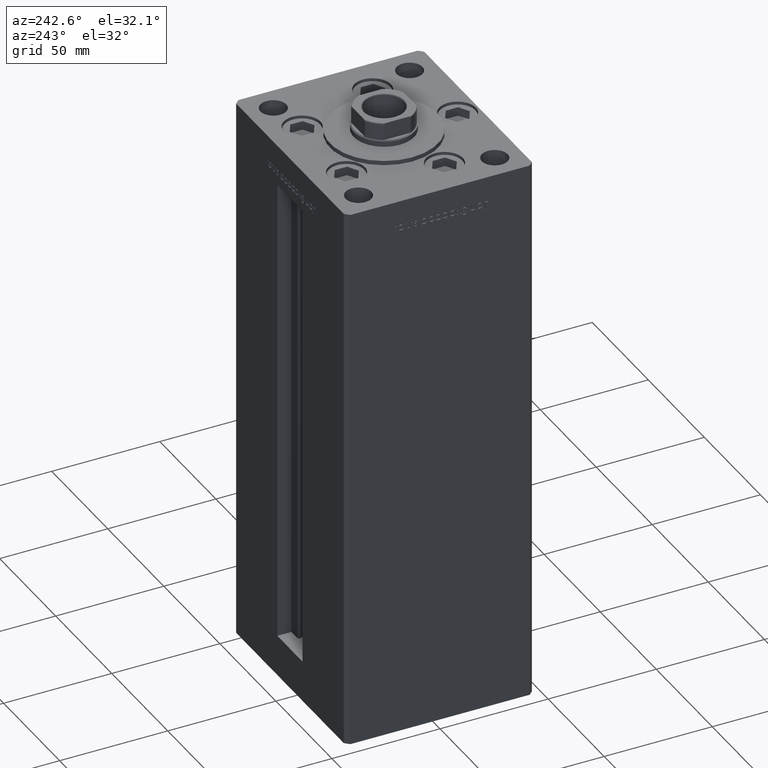
[diagram: clean part render]
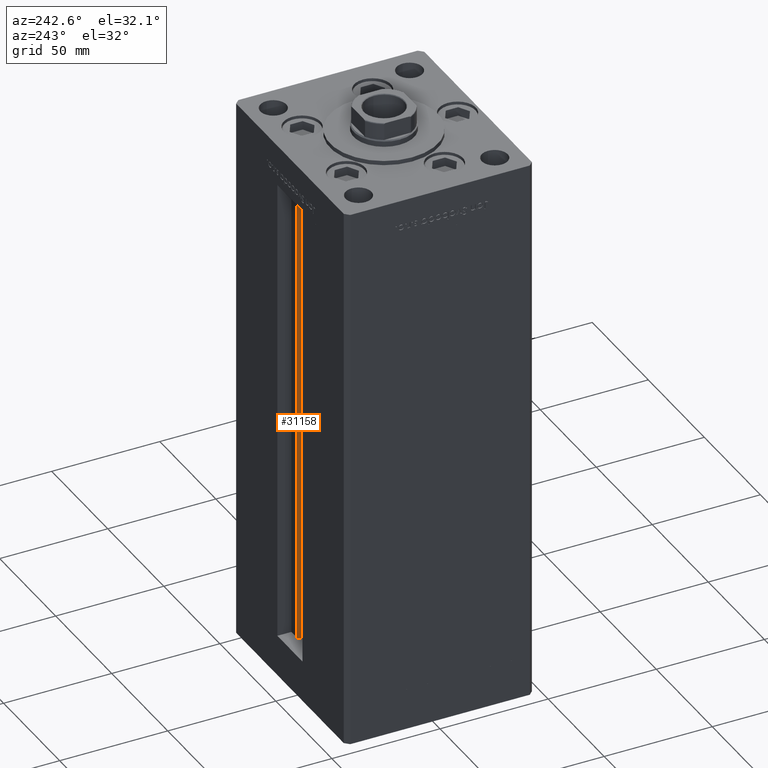
[diagram: same view with one face highlighted and labeled with its STEP entity id]
A machine part, auxiliary view. The second image highlights one B-rep face of the part: STEP entity #31158.
In plain terms, the highlighted cylindrical surface (edge-blend (fillet) strip) has radius 0.9333 mm, axis along (0, 0, 1).
Its self-contained STEP definition (entity closure, byte-faithful):
#1346 = VERTEX_POINT ( 'NONE', #15827 ) ;
#1512 = VECTOR ( 'NONE', #14667, 1000.000000000000000 ) ;
#2081 = ORIENTED_EDGE ( 'NONE', *, *, #35580, .F. ) ;
#4333 = VERTEX_POINT ( 'NONE', #14948 ) ;
#5484 = AXIS2_PLACEMENT_3D ( 'NONE', #7553, #15470, #48415 ) ;
#7276 = VERTEX_POINT ( 'NONE', #23153 ) ;
#7553 = CARTESIAN_POINT ( 'NONE',  ( 6.183333333333997928, 36.06666666666598786, 218.5000000000000000 ) ) ;
#8344 = EDGE_CURVE ( 'NONE', #30713, #4333, #51318, .T. ) ;
#13532 = ORIENTED_EDGE ( 'NONE', *, *, #14117, .F. ) ;
#13656 = DIRECTION ( 'NONE',  ( -0.000000000000000000, -0.000000000000000000, 1.000000000000000000 ) ) ;
#14117 = EDGE_CURVE ( 'NONE', #1346, #7276, #46086, .T. ) ;
#14606 = ORIENTED_EDGE ( 'NONE', *, *, #8344, .T. ) ;
#14667 = DIRECTION ( 'NONE',  ( -0.000000000000000000, -0.000000000000000000, 1.000000000000000000 ) ) ;
#14948 = CARTESIAN_POINT ( 'NONE',  ( 5.375042956467944499, 35.59999999999899245, 218.5000000000000000 ) ) ;
#15112 = DIRECTION ( 'NONE',  ( 1.000000000000000000, 0.000000000000000000, 0.000000000000000000 ) ) ;
#15470 = DIRECTION ( 'NONE',  ( 0.000000000000000000, 0.000000000000000000, -1.000000000000000000 ) ) ;
#15827 = CARTESIAN_POINT ( 'NONE',  ( 6.183333333333997928, 36.99999999999999289, 0.000000000000000000 ) ) ;
#22775 = CYLINDRICAL_SURFACE ( 'NONE', #26126, 0.9333333333340008142 ) ;
#23153 = CARTESIAN_POINT ( 'NONE',  ( 6.183333333333997928, 36.99999999999999289, 218.5000000000000000 ) ) ;
#26126 = AXIS2_PLACEMENT_3D ( 'NONE', #35150, #51249, #15112 ) ;
#28220 = CIRCLE ( 'NONE', #5484, 0.9333333333340008142 ) ;
#28642 = VECTOR ( 'NONE', #13656, 1000.000000000000000 ) ;
#29023 = DIRECTION ( 'NONE',  ( -0.000000000000000000, -0.000000000000000000, -1.000000000000000000 ) ) ;
#30713 = VERTEX_POINT ( 'NONE', #38142 ) ;
#31158 = ADVANCED_FACE ( 'NONE', ( #38588 ), #22775, .T. ) ;
#32449 = CARTESIAN_POINT ( 'NONE',  ( 6.183333333333997928, 36.06666666666598786, 0.000000000000000000 ) ) ;
#34401 = ORIENTED_EDGE ( 'NONE', *, *, #50366, .T. ) ;
#34445 = EDGE_LOOP ( 'NONE', ( #13532, #2081, #14606, #34401 ) ) ;
#34590 = AXIS2_PLACEMENT_3D ( 'NONE', #32449, #29023, #48538 ) ;
#35150 = CARTESIAN_POINT ( 'NONE',  ( 6.183333333333997928, 36.06666666666598786, 0.000000000000000000 ) ) ;
#35580 = EDGE_CURVE ( 'NONE', #30713, #1346, #46378, .T. ) ;
#38142 = CARTESIAN_POINT ( 'NONE',  ( 5.375042956467945388, 35.59999999999898534, 0.000000000000000000 ) ) ;
#38588 = FACE_OUTER_BOUND ( 'NONE', #34445, .T. ) ;
#43151 = CARTESIAN_POINT ( 'NONE',  ( 5.375042956467945388, 35.59999999999898534, 0.000000000000000000 ) ) ;
#46086 = LINE ( 'NONE', #49785, #28642 ) ;
#46378 = CIRCLE ( 'NONE', #34590, 0.9333333333340008142 ) ;
#48415 = DIRECTION ( 'NONE',  ( 1.000000000000000000, 0.000000000000000000, 0.000000000000000000 ) ) ;
#48538 = DIRECTION ( 'NONE',  ( 1.000000000000000000, 0.000000000000000000, 0.000000000000000000 ) ) ;
#49785 = CARTESIAN_POINT ( 'NONE',  ( 6.183333333333997928, 36.99999999999999289, 0.000000000000000000 ) ) ;
#50366 = EDGE_CURVE ( 'NONE', #4333, #7276, #28220, .T. ) ;
#51249 = DIRECTION ( 'NONE',  ( -0.000000000000000000, -0.000000000000000000, 1.000000000000000000 ) ) ;
#51318 = LINE ( 'NONE', #43151, #1512 ) ;